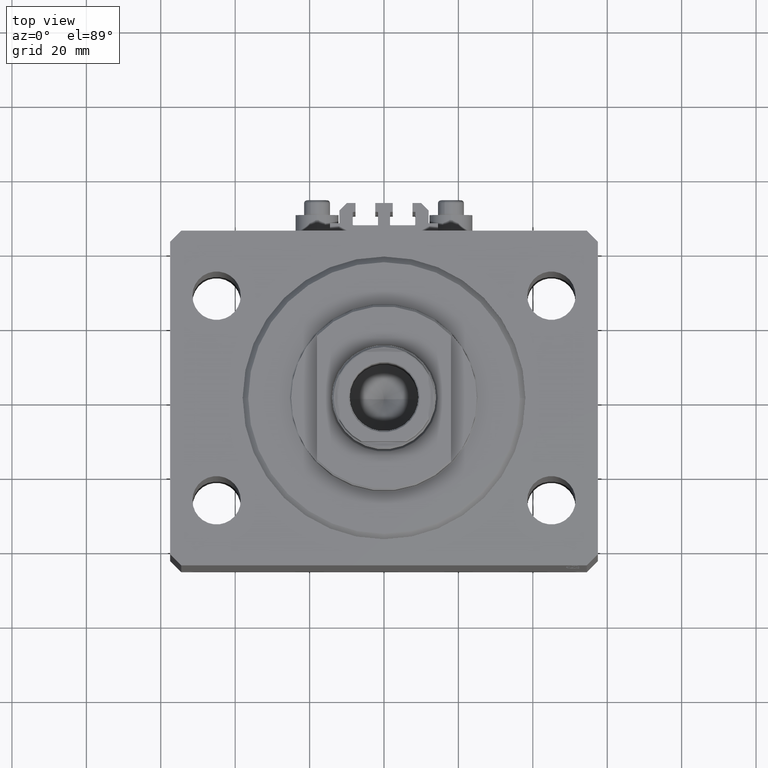
[diagram: clean part render]
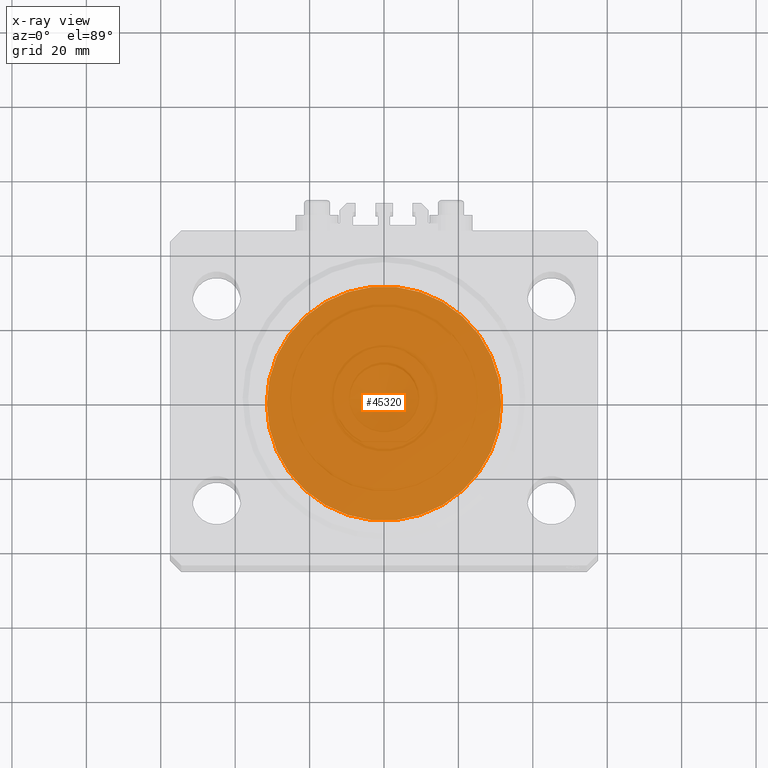
[diagram: x-ray — body ghosted, one internal face saturated and labeled with its STEP entity id]
A machine part, top view, then the same camera in x-ray: the body is ghosted and one INTERNAL B-rep face — a face not visible from any outside direction — is saturated and labeled: STEP entity #45320.
In plain terms, the highlighted planar face has unit normal (0, 0, 1).
Its self-contained STEP definition (entity closure, byte-faithful):
#62 = DIRECTION ( 'NONE',  ( 0.000000000000000000, 0.000000000000000000, 1.000000000000000000 ) ) ;
#3535 = CIRCLE ( 'NONE', #34095, 31.50000000000000000 ) ;
#3602 = EDGE_CURVE ( 'NONE', #24485, #32159, #25873, .T. ) ;
#3640 = PLANE ( 'NONE',  #24559 ) ;
#4380 = DIRECTION ( 'NONE',  ( 0.000000000000000000, 0.000000000000000000, 1.000000000000000000 ) ) ;
#12221 = DIRECTION ( 'NONE',  ( 1.000000000000000000, 0.000000000000000000, 0.000000000000000000 ) ) ;
#18509 = CARTESIAN_POINT ( 'NONE',  ( 0.000000000000000000, 0.000000000000000000, 0.000000000000000000 ) ) ;
#19703 = EDGE_LOOP ( 'NONE', ( #39356, #40877 ) ) ;
#24485 = VERTEX_POINT ( 'NONE', #29646 ) ;
#24559 = AXIS2_PLACEMENT_3D ( 'NONE', #32847, #62, #29260 ) ;
#25450 = DIRECTION ( 'NONE',  ( 1.000000000000000000, 0.000000000000000000, 0.000000000000000000 ) ) ;
#25652 = FACE_OUTER_BOUND ( 'NONE', #19703, .T. ) ;
#25741 = EDGE_CURVE ( 'NONE', #32159, #24485, #3535, .T. ) ;
#25873 = CIRCLE ( 'NONE', #32020, 31.50000000000000000 ) ;
#29257 = CARTESIAN_POINT ( 'NONE',  ( 0.000000000000000000, 0.000000000000000000, 0.000000000000000000 ) ) ;
#29260 = DIRECTION ( 'NONE',  ( 1.000000000000000000, 0.000000000000000000, -0.000000000000000000 ) ) ;
#29646 = CARTESIAN_POINT ( 'NONE',  ( -31.50000000000000000, 0.000000000000000000, 0.000000000000000000 ) ) ;
#32020 = AXIS2_PLACEMENT_3D ( 'NONE', #18509, #4380, #25450 ) ;
#32159 = VERTEX_POINT ( 'NONE', #45788 ) ;
#32847 = CARTESIAN_POINT ( 'NONE',  ( 0.000000000000000000, 0.000000000000000000, 0.000000000000000000 ) ) ;
#33794 = DIRECTION ( 'NONE',  ( 0.000000000000000000, 0.000000000000000000, 1.000000000000000000 ) ) ;
#34095 = AXIS2_PLACEMENT_3D ( 'NONE', #29257, #33794, #12221 ) ;
#39356 = ORIENTED_EDGE ( 'NONE', *, *, #3602, .F. ) ;
#40877 = ORIENTED_EDGE ( 'NONE', *, *, #25741, .F. ) ;
#45320 = ADVANCED_FACE ( 'NONE', ( #25652 ), #3640, .F. ) ;
#45788 = CARTESIAN_POINT ( 'NONE',  ( 31.50000000000000000, 3.857637417314162689E-15, 0.000000000000000000 ) ) ;